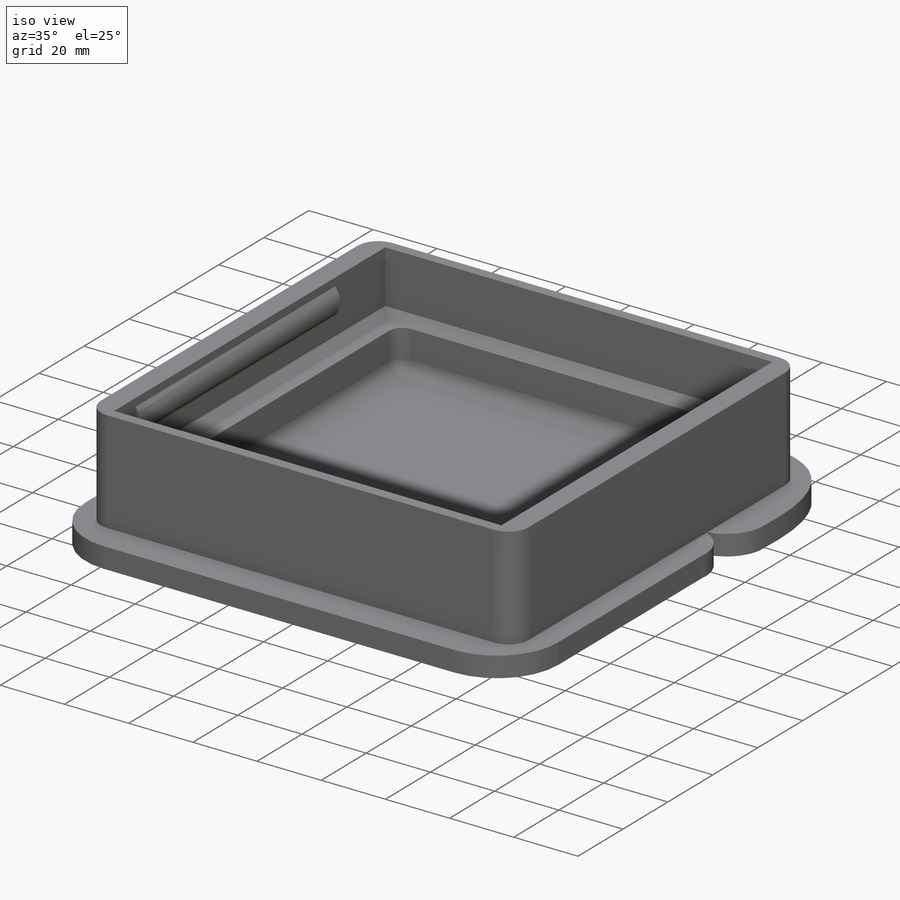
[diagram: iso view]
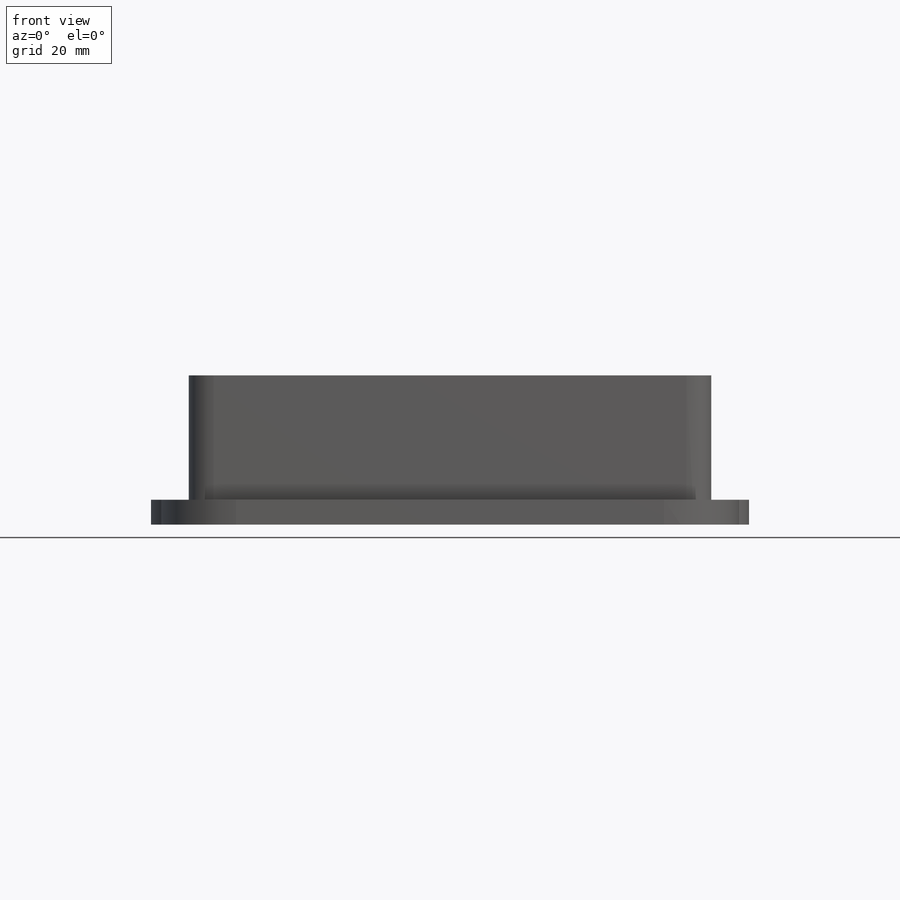
[diagram: front view]
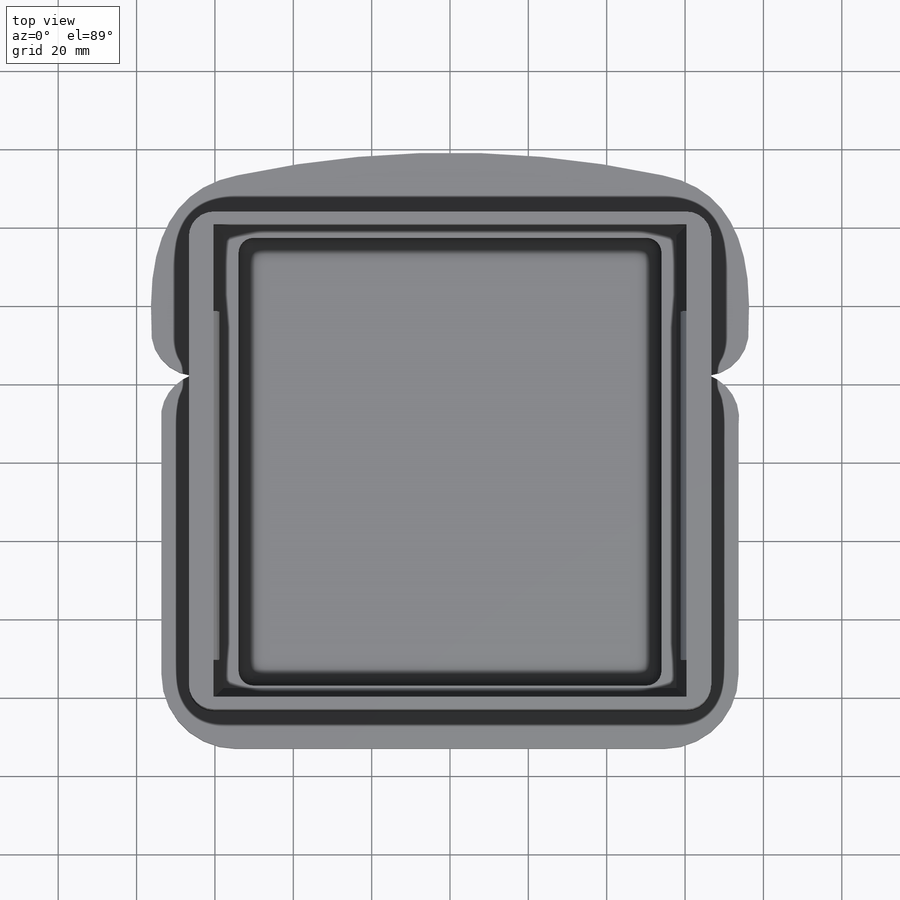
[diagram: top view]
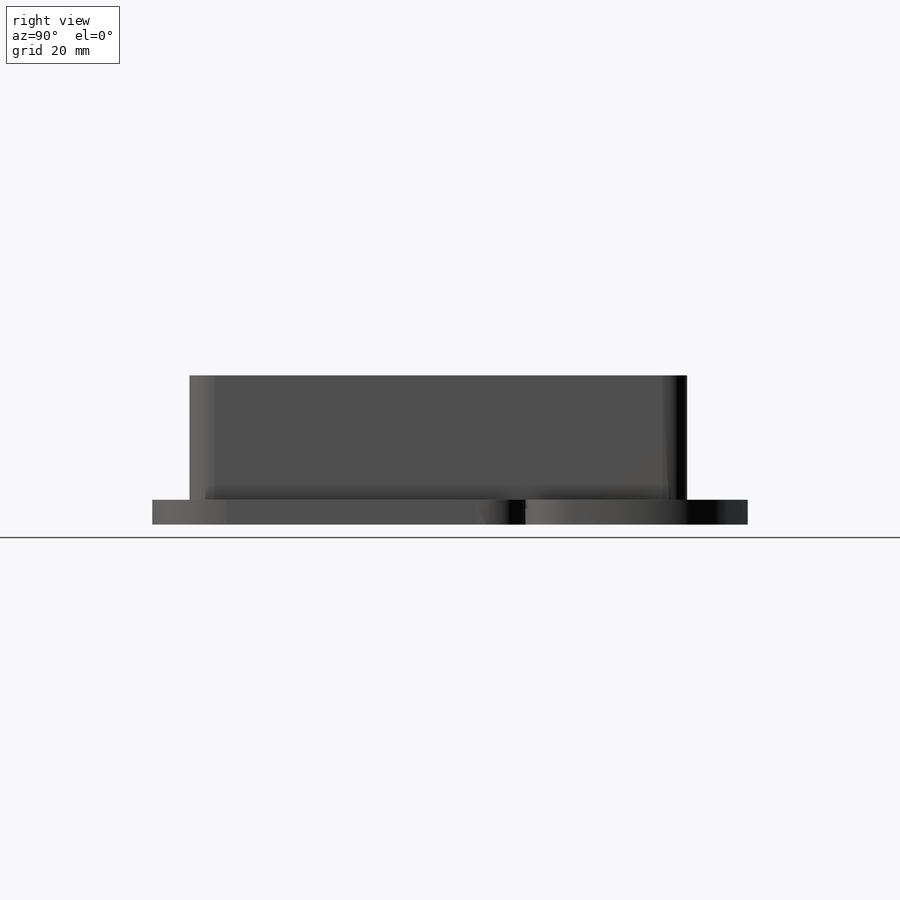
[diagram: right view]
SOLIDWORKS PART (.sldprt)
format: sldprt  version: not decoded by parser v0  size: 851,968 bytes
history: native  units: mm
features: sketch x5, extrude x4, fillet x3, material x1, chamfer x1, cut_extrude x1 (+11 scaffold rows collapsed)
feature tree (26):
  scaffold x11  (default folders/planes/origin — collapsed)
  material  "Teak"
  sketch  "Sketch2"  dims[c1.D11=~11.500339mm c1.D12=~11.500339mm c1.D14=~11.500339mm c1.D15=~11.500339mm c1.D17=19.05mm c1.D1=133.35mm c1.D2=127.0mm c1.D3=44.45mm c1.D4=2.54mm c1.D5=2.54mm c1.D6=10.16mm c1.D7=10.16mm c1.D8=6.35mm c1.D9=12.7mm c1.D10=12.7mm c1.D13=12.7mm c1.D16=19.05mm c2.D13=12.7mm]
  extrude  "Boss-Extrude1"  Depth=6.35mm
  sketch  "Sketch3"  dims[D1=107.95mm D2=114.3mm D3=12.7mm D4=6.35mm]
  extrude  "Boss-Extrude2"  Depth=12.7mm
  sketch  "Sketch4"  dims[D1=6.35mm D2=3.175mm]
  extrude  "Boss-Extrude3"  Depth=19.05mm
  fillet  "Fillet1"  Radius=6.35mm
  fillet  "Fillet2"  Radius=3.81mm
  sketch  "Sketch5"  dims[c1.D3=12.192mm c1.D1=19.05mm c1.D2=6.35mm c1.D4=8.89mm c1.D5=~9.442084mm c2.D5=90.0deg c3.D5=4.572mm]
  extrude  "Boss-Extrude4"  Depth=50.8mm
  chamfer  "Chamfer1"  Distance=2.54mm Angle=45deg
  sketch  "Sketch6"
  cut_extrude  "Cut-Extrude1"  Depth=2.54mm
  fillet  "Fillet3"  Radius=3.81mm
decode coverage: 13 of 14 modeling features carry decoded parameters
note: ~ marks probable driven/reference dimensions
note: suppression state not decoded; provenance and decode notes live in map.json
